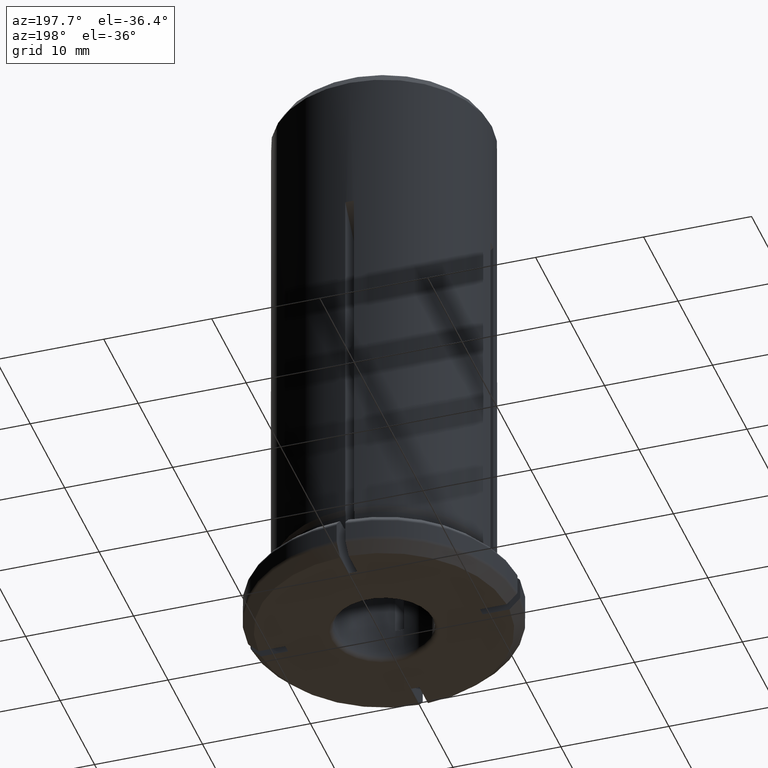
[diagram: clean part render]
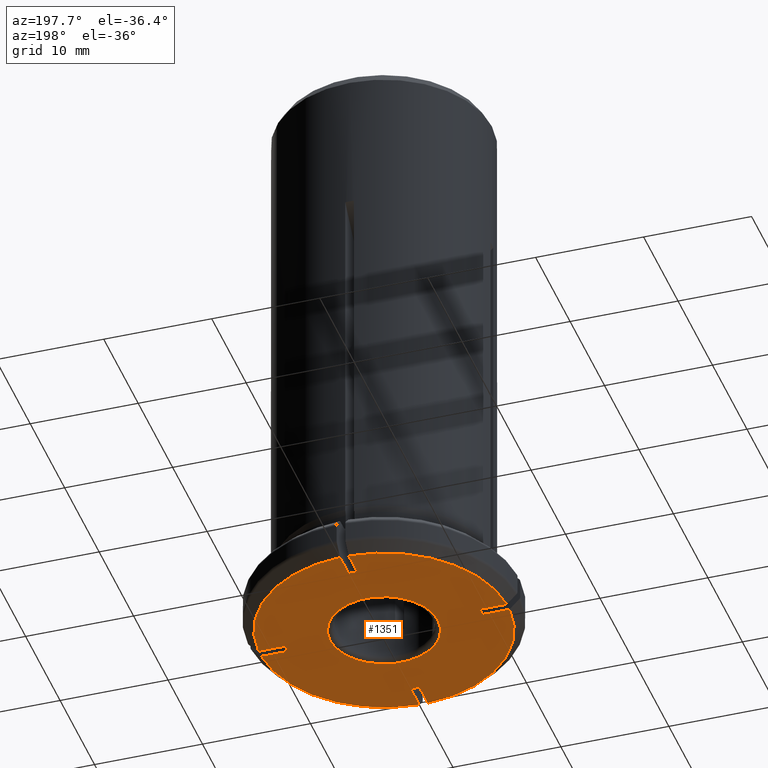
[diagram: same view with one face highlighted and labeled with its STEP entity id]
A machine part, auxiliary view. The second image highlights one B-rep face of the part: STEP entity #1351.
In plain terms, the highlighted planar face has unit normal (0, 0, -1).
Its self-contained STEP definition (entity closure, byte-faithful):
#37=PLANE('',#1504);
#86=LINE('',#2422,#154);
#87=LINE('',#2424,#155);
#88=LINE('',#2426,#156);
#89=LINE('',#2428,#157);
#90=LINE('',#2429,#158);
#91=LINE('',#2431,#159);
#92=LINE('',#2433,#160);
#93=LINE('',#2434,#161);
#94=LINE('',#2436,#162);
#95=LINE('',#2438,#163);
#96=LINE('',#2439,#164);
#97=LINE('',#2441,#165);
#154=VECTOR('',#1806,1000.);
#155=VECTOR('',#1807,1000.);
#156=VECTOR('',#1808,1000.);
#157=VECTOR('',#1809,1000.);
#158=VECTOR('',#1810,1000.);
#159=VECTOR('',#1811,1000.);
#160=VECTOR('',#1812,1000.);
#161=VECTOR('',#1813,1000.);
#162=VECTOR('',#1814,1000.);
#163=VECTOR('',#1815,1000.);
#164=VECTOR('',#1816,1000.);
#165=VECTOR('',#1817,1000.);
#501=ORIENTED_EDGE('',*,*,#860,.T.);
#502=ORIENTED_EDGE('',*,*,#738,.F.);
#503=ORIENTED_EDGE('',*,*,#861,.F.);
#504=ORIENTED_EDGE('',*,*,#862,.F.);
#505=ORIENTED_EDGE('',*,*,#863,.T.);
#506=ORIENTED_EDGE('',*,*,#772,.F.);
#507=ORIENTED_EDGE('',*,*,#864,.F.);
#508=ORIENTED_EDGE('',*,*,#865,.F.);
#509=ORIENTED_EDGE('',*,*,#866,.T.);
#510=ORIENTED_EDGE('',*,*,#826,.F.);
#511=ORIENTED_EDGE('',*,*,#867,.F.);
#512=ORIENTED_EDGE('',*,*,#868,.F.);
#513=ORIENTED_EDGE('',*,*,#869,.T.);
#514=ORIENTED_EDGE('',*,*,#703,.F.);
#515=ORIENTED_EDGE('',*,*,#870,.F.);
#516=ORIENTED_EDGE('',*,*,#871,.F.);
#517=ORIENTED_EDGE('',*,*,#872,.T.);
#703=EDGE_CURVE('',#907,#908,#1044,.F.);
#738=EDGE_CURVE('',#932,#930,#1056,.F.);
#772=EDGE_CURVE('',#956,#954,#1068,.F.);
#826=EDGE_CURVE('',#1000,#998,#1084,.F.);
#860=EDGE_CURVE('',#1024,#930,#86,.T.);
#861=EDGE_CURVE('',#1025,#932,#87,.T.);
#862=EDGE_CURVE('',#1026,#1025,#88,.T.);
#863=EDGE_CURVE('',#1026,#954,#89,.T.);
#864=EDGE_CURVE('',#1027,#956,#90,.T.);
#865=EDGE_CURVE('',#1028,#1027,#91,.T.);
#866=EDGE_CURVE('',#1028,#998,#92,.T.);
#867=EDGE_CURVE('',#1029,#1000,#93,.T.);
#868=EDGE_CURVE('',#1030,#1029,#94,.T.);
#869=EDGE_CURVE('',#1030,#908,#95,.T.);
#870=EDGE_CURVE('',#1031,#907,#96,.T.);
#871=EDGE_CURVE('',#1024,#1031,#97,.T.);
#872=EDGE_CURVE('',#1032,#1032,#1100,.F.);
#907=VERTEX_POINT('',#1912);
#908=VERTEX_POINT('',#1914);
#930=VERTEX_POINT('',#2027);
#932=VERTEX_POINT('',#2034);
#954=VERTEX_POINT('',#2144);
#956=VERTEX_POINT('',#2151);
#998=VERTEX_POINT('',#2303);
#1000=VERTEX_POINT('',#2310);
#1024=VERTEX_POINT('',#2423);
#1025=VERTEX_POINT('',#2425);
#1026=VERTEX_POINT('',#2427);
#1027=VERTEX_POINT('',#2430);
#1028=VERTEX_POINT('',#2432);
#1029=VERTEX_POINT('',#2435);
#1030=VERTEX_POINT('',#2437);
#1031=VERTEX_POINT('',#2440);
#1032=VERTEX_POINT('',#2443);
#1044=CIRCLE('',#1388,11.4988897061572);
#1056=CIRCLE('',#1411,11.4988897061572);
#1068=CIRCLE('',#1434,11.4988897061572);
#1084=CIRCLE('',#1471,11.4988897061572);
#1100=CIRCLE('',#1505,5.);
#1169=EDGE_LOOP('',(#501,#502,#503,#504,#505,#506,#507,#508,#509,#510,#511,
#512,#513,#514,#515,#516));
#1170=EDGE_LOOP('',(#517));
#1259=FACE_BOUND('',#1169,.T.);
#1260=FACE_BOUND('',#1170,.T.);
#1351=ADVANCED_FACE('',(#1259,#1260),#37,.T.);
#1388=AXIS2_PLACEMENT_3D('',#1913,#1540,#1541);
#1411=AXIS2_PLACEMENT_3D('',#2035,#1592,#1593);
#1434=AXIS2_PLACEMENT_3D('',#2152,#1644,#1645);
#1471=AXIS2_PLACEMENT_3D('',#2311,#1732,#1733);
#1504=AXIS2_PLACEMENT_3D('',#2421,#1804,#1805);
#1505=AXIS2_PLACEMENT_3D('',#2442,#1818,#1819);
#1540=DIRECTION('',(0.,0.,-1.));
#1541=DIRECTION('',(-1.,0.,0.));
#1592=DIRECTION('',(0.,0.,-1.));
#1593=DIRECTION('',(-1.,0.,0.));
#1644=DIRECTION('',(0.,0.,-1.));
#1645=DIRECTION('',(-1.,0.,0.));
#1732=DIRECTION('',(0.,0.,-1.));
#1733=DIRECTION('',(-1.,0.,0.));
#1804=DIRECTION('',(0.,0.,-1.));
#1805=DIRECTION('',(-1.,0.,0.));
#1806=DIRECTION('',(-1.60812264967664E-16,-1.,0.));
#1807=DIRECTION('',(-1.,-1.22464679914735E-16,0.));
#1808=DIRECTION('',(1.22464679914735E-16,-1.,0.));
#1809=DIRECTION('',(-1.,-1.22464679914735E-16,0.));
#1810=DIRECTION('',(-1.83697019872103E-16,1.,0.));
#1811=DIRECTION('',(-1.,-1.83697019872103E-16,0.));
#1812=DIRECTION('',(-1.83697019872103E-16,1.,0.));
#1813=DIRECTION('',(1.,0.,0.));
#1814=DIRECTION('',(0.,1.,0.));
#1815=DIRECTION('',(1.,0.,0.));
#1816=DIRECTION('',(-1.60812264967664E-16,-1.,0.));
#1817=DIRECTION('',(1.,-1.60812264967664E-16,0.));
#1818=DIRECTION('',(0.,0.,-1.));
#1819=DIRECTION('',(-1.,0.,0.));
#1912=CARTESIAN_POINT('',(0.400000000000002,-11.4919304067841,-4.));
#1913=CARTESIAN_POINT('',(0.,0.,-4.));
#1914=CARTESIAN_POINT('',(11.4919304067841,-0.4,-4.));
#2027=CARTESIAN_POINT('',(-0.399999999999998,-11.4919304067841,-4.));
#2034=CARTESIAN_POINT('',(-11.4919304067841,-0.400000000000001,-4.));
#2035=CARTESIAN_POINT('',(0.,0.,-4.));
#2144=CARTESIAN_POINT('',(-11.4919304067841,0.399999999999999,-4.));
#2151=CARTESIAN_POINT('',(-0.399999999999998,11.4919304067841,-4.));
#2152=CARTESIAN_POINT('',(0.,0.,-4.));
#2303=CARTESIAN_POINT('',(0.400000000000002,11.4919304067841,-4.));
#2310=CARTESIAN_POINT('',(11.4919304067841,0.4,-4.));
#2311=CARTESIAN_POINT('',(0.,0.,-4.));
#2421=CARTESIAN_POINT('',(12.5,0.,-4.));
#2422=CARTESIAN_POINT('',(-0.399999999999998,-9.01646599772924,-4.));
#2423=CARTESIAN_POINT('',(-0.399999999999998,-9.01646599772924,-4.));
#2424=CARTESIAN_POINT('',(-9.01646599772924,-0.400000000000001,-4.));
#2425=CARTESIAN_POINT('',(-9.01646599772924,-0.400000000000001,-4.));
#2426=CARTESIAN_POINT('',(-9.01646599772924,0.399999999999999,-4.));
#2427=CARTESIAN_POINT('',(-9.01646599772924,0.399999999999999,-4.));
#2428=CARTESIAN_POINT('',(-9.01646599772924,0.399999999999999,-4.));
#2429=CARTESIAN_POINT('',(-0.399999999999998,9.01646599772924,-4.));
#2430=CARTESIAN_POINT('',(-0.399999999999998,9.01646599772924,-4.));
#2431=CARTESIAN_POINT('',(0.400000000000002,9.01646599772924,-4.));
#2432=CARTESIAN_POINT('',(0.400000000000002,9.01646599772924,-4.));
#2433=CARTESIAN_POINT('',(0.400000000000002,9.01646599772924,-4.));
#2434=CARTESIAN_POINT('',(9.01646599772924,0.4,-4.));
#2435=CARTESIAN_POINT('',(9.01646599772924,0.4,-4.));
#2436=CARTESIAN_POINT('',(9.01646599772924,-0.4,-4.));
#2437=CARTESIAN_POINT('',(9.01646599772924,-0.4,-4.));
#2438=CARTESIAN_POINT('',(9.01646599772924,-0.4,-4.));
#2439=CARTESIAN_POINT('',(0.400000000000002,-9.01646599772924,-4.));
#2440=CARTESIAN_POINT('',(0.400000000000002,-9.01646599772924,-4.));
#2441=CARTESIAN_POINT('',(-0.399999999999998,-9.01646599772924,-4.));
#2442=CARTESIAN_POINT('',(0.,0.,-4.));
#2443=CARTESIAN_POINT('',(-5.,0.,-4.));